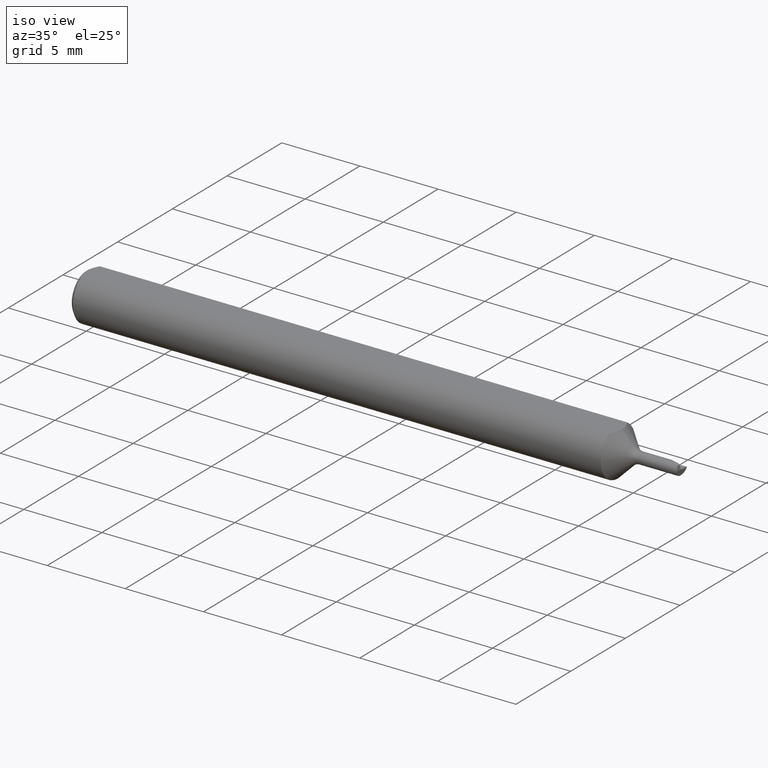
[diagram: clean part render]
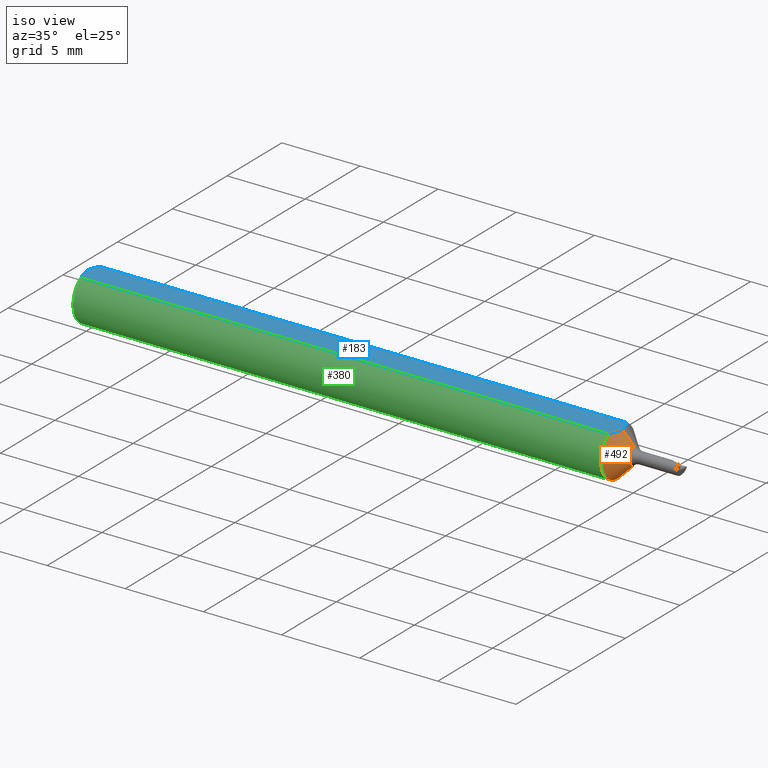
[diagram: same view with three faces highlighted in distinct colors, each labeled with its STEP entity id]
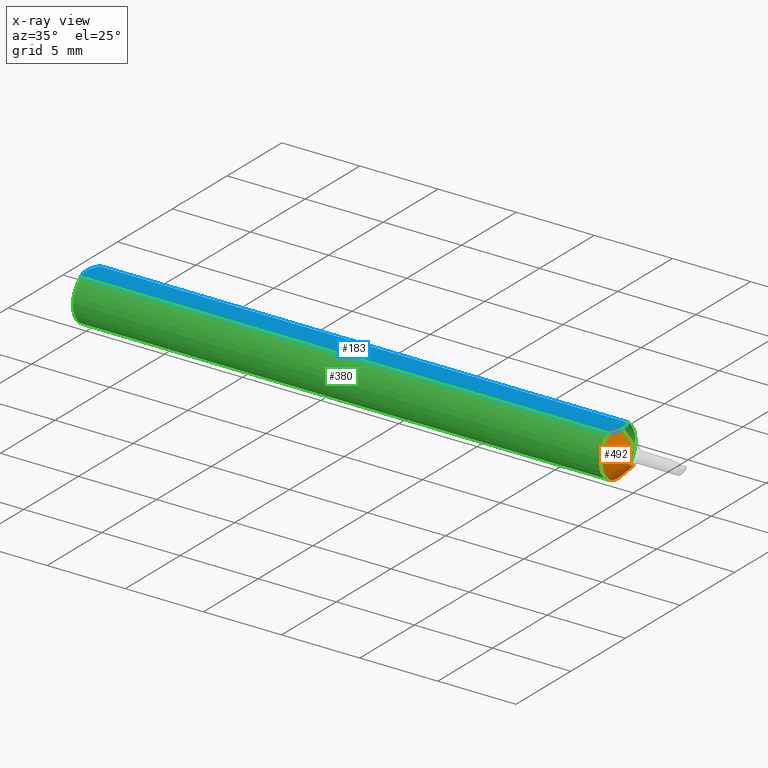
[diagram: x-ray of the same camera — body ghosted, the three highlighted faces saturated]
A machine part, iso view with three faces highlighted in distinct colors.
The next image is the same camera in x-ray (body ghosted, the three faces saturated) — at least one of them is partly hidden behind the body in this view.
Their STEP definitions:

[orange] entity #492 — the highlighted conical surface has half-angle 45 deg.
#19 = CARTESIAN_POINT ( 'NONE',  ( 1.339650000000000007, 0.000000000000000000, 0.000000000000000000 ) ) ;
#30 = VERTEX_POINT ( 'NONE', #156 ) ;
#53 = CARTESIAN_POINT ( 'NONE',  ( 1.380677669529663865, 2.611232376085963916E-18, -0.02132233047033647161 ) ) ;
#60 = ORIENTED_EDGE ( 'NONE', *, *, #375, .T. ) ;
#87 = EDGE_LOOP ( 'NONE', ( #453, #309, #60, #531, #537 ) ) ;
#98 = CARTESIAN_POINT ( 'NONE',  ( 1.339650000000000007, -0.03386738844375220686, 0.05235000000000000070 ) ) ;
#106 = CARTESIAN_POINT ( 'NONE',  ( 1.348578451796299094, -0.01191733704899615789, 0.05235000000000002152 ) ) ;
#112 = B_SPLINE_CURVE_WITH_KNOTS ( 'NONE', 3,
 ( #540, #394, #106, #256, #595, #98 ),
 .UNSPECIFIED., .F., .F.,
 ( 4, 2, 4 ),
 ( 0.002995647966321671272, 0.003444829281114806727, 0.003894010595907941748 ),
 .UNSPECIFIED. ) ;
#130 = VERTEX_POINT ( 'NONE', #364 ) ;
#156 = CARTESIAN_POINT ( 'NONE',  ( 1.380677669529663865, 2.611232376085951590E-18, -0.02132233047033637099 ) ) ;
#161 = CONICAL_SURFACE ( 'NONE', #277, 0.02132233047033647161, 0.7853981633974437271 ) ;
#187 = LINE ( 'NONE', #582, #282 ) ;
#193 = CIRCLE ( 'NONE', #556, 0.02132233047033647161 ) ;
#194 = CARTESIAN_POINT ( 'NONE',  ( 1.380677669529663865, 0.000000000000000000, 0.000000000000000000 ) ) ;
#199 = EDGE_CURVE ( 'NONE', #254, #480, #555, .T. ) ;
#214 = CARTESIAN_POINT ( 'NONE',  ( 1.380677669529663865, 0.000000000000000000, 0.000000000000000000 ) ) ;
#244 = FACE_OUTER_BOUND ( 'NONE', #87, .T. ) ;
#251 = CARTESIAN_POINT ( 'NONE',  ( 1.339650000000000007, -0.03386738844375220686, 0.05235000000000000070 ) ) ;
#254 = VERTEX_POINT ( 'NONE', #460 ) ;
#256 = CARTESIAN_POINT ( 'NONE',  ( 1.344984136213919879, -0.02321572383389658781, 0.05235000000000001458 ) ) ;
#277 = AXIS2_PLACEMENT_3D ( 'NONE', #194, #294, #538 ) ;
#280 = DIRECTION ( 'NONE',  ( -0.7071067811865507924, 0.000000000000000000, 0.7071067811865442421 ) ) ;
#282 = VECTOR ( 'NONE', #280, 39.37007874015748143 ) ;
#294 = DIRECTION ( 'NONE',  ( -1.000000000000000000, -0.000000000000000000, -0.000000000000000000 ) ) ;
#307 = DIRECTION ( 'NONE',  ( -1.000000000000000000, -0.000000000000000000, -0.000000000000000000 ) ) ;
#309 = ORIENTED_EDGE ( 'NONE', *, *, #593, .T. ) ;
#364 = CARTESIAN_POINT ( 'NONE',  ( 1.349650000000000238, -3.532469938474420466E-21, 0.05235000000000001458 ) ) ;
#375 = EDGE_CURVE ( 'NONE', #469, #130, #187, .T. ) ;
#394 = CARTESIAN_POINT ( 'NONE',  ( 1.349650000000000238, -0.005923604052113098407, 0.05235000000000002152 ) ) ;
#414 = AXIS2_PLACEMENT_3D ( 'NONE', #19, #613, #416 ) ;
#416 = DIRECTION ( 'NONE',  ( 0.000000000000000000, 0.000000000000000000, 1.000000000000000000 ) ) ;
#439 = DIRECTION ( 'NONE',  ( -0.7071067811865507924, 8.659560562354893415E-17, -0.7071067811865442421 ) ) ;
#453 = ORIENTED_EDGE ( 'NONE', *, *, #564, .F. ) ;
#460 = CARTESIAN_POINT ( 'NONE',  ( 1.339650000000000007, 7.635672792683746671E-18, -0.06235000000000000264 ) ) ;
#469 = VERTEX_POINT ( 'NONE', #494 ) ;
#480 = VERTEX_POINT ( 'NONE', #251 ) ;
#483 = EDGE_CURVE ( 'NONE', #130, #480, #112, .T. ) ;
#489 = VECTOR ( 'NONE', #439, 39.37007874015748143 ) ;
#491 = LINE ( 'NONE', #53, #489 ) ;
#492 = ADVANCED_FACE ( 'NONE', ( #244 ), #161, .T. ) ;
#494 = CARTESIAN_POINT ( 'NONE',  ( 1.380677669529663865, 0.000000000000000000, 0.02132233047033637099 ) ) ;
#502 = DIRECTION ( 'NONE',  ( 0.000000000000000000, 0.000000000000000000, 1.000000000000000000 ) ) ;
#531 = ORIENTED_EDGE ( 'NONE', *, *, #483, .T. ) ;
#537 = ORIENTED_EDGE ( 'NONE', *, *, #199, .F. ) ;
#538 = DIRECTION ( 'NONE',  ( 0.000000000000000000, 0.000000000000000000, 1.000000000000000000 ) ) ;
#540 = CARTESIAN_POINT ( 'NONE',  ( 1.349650000000000238, -3.532469938474420466E-21, 0.05235000000000001458 ) ) ;
#555 = CIRCLE ( 'NONE', #414, 0.06235000000000000264 ) ;
#556 = AXIS2_PLACEMENT_3D ( 'NONE', #214, #307, #502 ) ;
#564 = EDGE_CURVE ( 'NONE', #30, #254, #491, .T. ) ;
#582 = CARTESIAN_POINT ( 'NONE',  ( 1.380677669529663865, 0.000000000000000000, 0.02132233047033647161 ) ) ;
#593 = EDGE_CURVE ( 'NONE', #30, #469, #193, .T. ) ;
#595 = CARTESIAN_POINT ( 'NONE',  ( 1.342499562682859970, -0.02862133194396089889, 0.05235000000000002152 ) ) ;
#613 = DIRECTION ( 'NONE',  ( -1.000000000000000000, -0.000000000000000000, -0.000000000000000000 ) ) ;

[blue] entity #183 — the highlighted planar face has unit normal (0, 0, -1).
#11 = B_SPLINE_CURVE_WITH_KNOTS ( 'NONE', 3,
 ( #488, #257, #293, #485, #393, #101 ),
 .UNSPECIFIED., .F., .F.,
 ( 4, 2, 4 ),
 ( 0.0009229516234078821539, 0.001371626545108044996, 0.001820301466808207621 ),
 .UNSPECIFIED. ) ;
#25 = B_SPLINE_CURVE_WITH_KNOTS ( 'NONE', 3,
 ( #221, #621, #322, #275, #468, #429 ),
 .UNSPECIFIED., .F., .F.,
 ( 4, 2, 4 ),
 ( 0.001820301466808207621, 0.002269751589840481119, 0.002719201712872754834 ),
 .UNSPECIFIED. ) ;
#44 = ORIENTED_EDGE ( 'NONE', *, *, #97, .T. ) ;
#51 = DIRECTION ( 'NONE',  ( 1.000000000000000000, 0.000000000000000000, 0.000000000000000000 ) ) ;
#61 = CARTESIAN_POINT ( 'NONE',  ( 0.000000000000000000, -0.03386738844375220686, 0.05235000000000000070 ) ) ;
#69 = CARTESIAN_POINT ( 'NONE',  ( 1.339650000000000007, 0.03386738844375220686, 0.05235000000000000070 ) ) ;
#71 = DIRECTION ( 'NONE',  ( -1.000000000000000000, 0.000000000000000000, -0.000000000000000000 ) ) ;
#74 = PLANE ( 'NONE',  #241 ) ;
#94 = ORIENTED_EDGE ( 'NONE', *, *, #483, .F. ) ;
#97 = EDGE_CURVE ( 'NONE', #302, #600, #11, .T. ) ;
#98 = CARTESIAN_POINT ( 'NONE',  ( 1.339650000000000007, -0.03386738844375220686, 0.05235000000000000070 ) ) ;
#100 = CARTESIAN_POINT ( 'NONE',  ( 1.349650000000000238, 0.005921060704595571683, 0.05235000000000002152 ) ) ;
#101 = CARTESIAN_POINT ( 'NONE',  ( 0.000000000000000000, 0.000000000000000000, 0.05235000000000033377 ) ) ;
#106 = CARTESIAN_POINT ( 'NONE',  ( 1.348578451796299094, -0.01191733704899615789, 0.05235000000000002152 ) ) ;
#112 = B_SPLINE_CURVE_WITH_KNOTS ( 'NONE', 3,
 ( #540, #394, #106, #256, #595, #98 ),
 .UNSPECIFIED., .F., .F.,
 ( 4, 2, 4 ),
 ( 0.002995647966321671272, 0.003444829281114806727, 0.003894010595907941748 ),
 .UNSPECIFIED. ) ;
#113 = ORIENTED_EDGE ( 'NONE', *, *, #513, .F. ) ;
#130 = VERTEX_POINT ( 'NONE', #364 ) ;
#149 = CARTESIAN_POINT ( 'NONE',  ( 1.344987470951200415, 0.02320690041070301232, 0.05235000000000002152 ) ) ;
#183 = ADVANCED_FACE ( 'NONE', ( #515 ), #74, .F. ) ;
#188 = ORIENTED_EDGE ( 'NONE', *, *, #554, .F. ) ;
#190 = LINE ( 'NONE', #61, #637 ) ;
#205 = CARTESIAN_POINT ( 'NONE',  ( 1.349650000000000238, -3.532469938474420466E-21, 0.05235000000000001458 ) ) ;
#221 = CARTESIAN_POINT ( 'NONE',  ( 0.000000000000000000, 0.000000000000000000, 0.05235000000000033377 ) ) ;
#241 = AXIS2_PLACEMENT_3D ( 'NONE', #273, #457, #71 ) ;
#246 = CARTESIAN_POINT ( 'NONE',  ( 0.000000000000000000, 0.03386738844375220686, 0.05235000000000000070 ) ) ;
#251 = CARTESIAN_POINT ( 'NONE',  ( 1.339650000000000007, -0.03386738844375220686, 0.05235000000000000070 ) ) ;
#256 = CARTESIAN_POINT ( 'NONE',  ( 1.344984136213919879, -0.02321572383389658781, 0.05235000000000001458 ) ) ;
#257 = CARTESIAN_POINT ( 'NONE',  ( 0.007185421074056205608, 0.02868573718286560742, 0.05235000000000002152 ) ) ;
#273 = CARTESIAN_POINT ( 'NONE',  ( 1.500000000000000222, 0.06235000000000000264, 0.05235000000000001458 ) ) ;
#275 = CARTESIAN_POINT ( 'NONE',  ( 0.004679365186825695105, -0.02325953974091124477, 0.05235000000000000764 ) ) ;
#289 = EDGE_LOOP ( 'NONE', ( #597, #44, #419, #113, #94, #188 ) ) ;
#293 = CARTESIAN_POINT ( 'NONE',  ( 0.004671770759546769666, 0.02323517832780105236, 0.05235000000000002152 ) ) ;
#302 = VERTEX_POINT ( 'NONE', #373 ) ;
#322 = CARTESIAN_POINT ( 'NONE',  ( 0.001055043921644571291, -0.01186408073217194367, 0.05235000000000002152 ) ) ;
#343 = CARTESIAN_POINT ( 'NONE',  ( 1.339650000000000007, 0.03386738844375220686, 0.05235000000000000070 ) ) ;
#364 = CARTESIAN_POINT ( 'NONE',  ( 1.349650000000000238, -3.532469938474420466E-21, 0.05235000000000001458 ) ) ;
#367 = EDGE_CURVE ( 'NONE', #600, #551, #25, .T. ) ;
#373 = CARTESIAN_POINT ( 'NONE',  ( 0.009999999999999890921, 0.03386738844375217911, 0.05235000000000001458 ) ) ;
#392 = CARTESIAN_POINT ( 'NONE',  ( 1.342494366674541473, 0.02863089781642876377, 0.05235000000000002152 ) ) ;
#393 = CARTESIAN_POINT ( 'NONE',  ( -1.099542139246802830E-15, 0.005954997531773979953, 0.05235000000000002152 ) ) ;
#394 = CARTESIAN_POINT ( 'NONE',  ( 1.349650000000000238, -0.005923604052113098407, 0.05235000000000002152 ) ) ;
#419 = ORIENTED_EDGE ( 'NONE', *, *, #367, .T. ) ;
#429 = CARTESIAN_POINT ( 'NONE',  ( 0.01000000000000840841, -0.03386738844395137393, 0.05235000000000001458 ) ) ;
#432 = CARTESIAN_POINT ( 'NONE',  ( 0.01000000000000840841, -0.03386738844395137393, 0.05235000000000001458 ) ) ;
#435 = VECTOR ( 'NONE', #51, 39.37007874015748143 ) ;
#448 = CARTESIAN_POINT ( 'NONE',  ( 0.000000000000000000, 0.000000000000000000, 0.05235000000000033377 ) ) ;
#454 = EDGE_CURVE ( 'NONE', #302, #629, #487, .T. ) ;
#457 = DIRECTION ( 'NONE',  ( 0.000000000000000000, 0.000000000000000000, -1.000000000000000000 ) ) ;
#468 = CARTESIAN_POINT ( 'NONE',  ( 0.007163450771416182694, -0.02864528976632487248, 0.05235000000000001458 ) ) ;
#480 = VERTEX_POINT ( 'NONE', #251 ) ;
#483 = EDGE_CURVE ( 'NONE', #130, #480, #112, .T. ) ;
#485 = CARTESIAN_POINT ( 'NONE',  ( 0.001063697276021357847, 0.01189177144351693735, 0.05235000000000001458 ) ) ;
#487 = LINE ( 'NONE', #246, #435 ) ;
#488 = CARTESIAN_POINT ( 'NONE',  ( 0.009999999999999890921, 0.03386738844375217911, 0.05235000000000001458 ) ) ;
#513 = EDGE_CURVE ( 'NONE', #480, #551, #190, .T. ) ;
#515 = FACE_OUTER_BOUND ( 'NONE', #289, .T. ) ;
#517 = B_SPLINE_CURVE_WITH_KNOTS ( 'NONE', 3,
 ( #343, #392, #149, #545, #100, #205 ),
 .UNSPECIFIED., .F., .F.,
 ( 4, 2, 4 ),
 ( 0.002097671056027859606, 0.002546659511174765439, 0.002995647966321671272 ),
 .UNSPECIFIED. ) ;
#540 = CARTESIAN_POINT ( 'NONE',  ( 1.349650000000000238, -3.532469938474420466E-21, 0.05235000000000001458 ) ) ;
#545 = CARTESIAN_POINT ( 'NONE',  ( 1.348578772065486708, 0.01191466962039928676, 0.05235000000000001458 ) ) ;
#551 = VERTEX_POINT ( 'NONE', #432 ) ;
#554 = EDGE_CURVE ( 'NONE', #629, #130, #517, .T. ) ;
#595 = CARTESIAN_POINT ( 'NONE',  ( 1.342499562682859970, -0.02862133194396089889, 0.05235000000000002152 ) ) ;
#597 = ORIENTED_EDGE ( 'NONE', *, *, #454, .F. ) ;
#600 = VERTEX_POINT ( 'NONE', #448 ) ;
#621 = CARTESIAN_POINT ( 'NONE',  ( -1.070637973615595603E-15, -0.005965286321711177862, 0.05235000000000002152 ) ) ;
#629 = VERTEX_POINT ( 'NONE', #69 ) ;
#635 = DIRECTION ( 'NONE',  ( -1.000000000000000000, -0.000000000000000000, -0.000000000000000000 ) ) ;
#637 = VECTOR ( 'NONE', #635, 39.37007874015748143 ) ;

[green] entity #380 — the highlighted cylindrical surface (edge-blend (fillet) strip) has radius 1.5837 mm, axis along (-1, -0, -0).
#12 = EDGE_CURVE ( 'NONE', #629, #254, #440, .T. ) ;
#19 = CARTESIAN_POINT ( 'NONE',  ( 1.339650000000000007, 0.000000000000000000, 0.000000000000000000 ) ) ;
#34 = DIRECTION ( 'NONE',  ( -1.000000000000000000, -0.000000000000000000, -0.000000000000000000 ) ) ;
#48 = VERTEX_POINT ( 'NONE', #603 ) ;
#51 = DIRECTION ( 'NONE',  ( 1.000000000000000000, 0.000000000000000000, 0.000000000000000000 ) ) ;
#61 = CARTESIAN_POINT ( 'NONE',  ( 0.000000000000000000, -0.03386738844375220686, 0.05235000000000000070 ) ) ;
#69 = CARTESIAN_POINT ( 'NONE',  ( 1.339650000000000007, 0.03386738844375220686, 0.05235000000000000070 ) ) ;
#88 = AXIS2_PLACEMENT_3D ( 'NONE', #596, #295, #252 ) ;
#90 = EDGE_CURVE ( 'NONE', #48, #302, #644, .T. ) ;
#96 = CARTESIAN_POINT ( 'NONE',  ( 0.009999999999999887451, 0.000000000000000000, 0.000000000000000000 ) ) ;
#124 = ORIENTED_EDGE ( 'NONE', *, *, #199, .T. ) ;
#126 = FACE_OUTER_BOUND ( 'NONE', #137, .T. ) ;
#137 = EDGE_LOOP ( 'NONE', ( #177, #124, #281, #631, #431, #326 ) ) ;
#145 = CARTESIAN_POINT ( 'NONE',  ( 0.009999999999999887451, 0.000000000000000000, 0.000000000000000000 ) ) ;
#146 = AXIS2_PLACEMENT_3D ( 'NONE', #471, #34, #225 ) ;
#176 = CYLINDRICAL_SURFACE ( 'NONE', #146, 0.06235000000000000264 ) ;
#177 = ORIENTED_EDGE ( 'NONE', *, *, #12, .T. ) ;
#190 = LINE ( 'NONE', #61, #637 ) ;
#198 = DIRECTION ( 'NONE',  ( 0.000000000000000000, 0.000000000000000000, -1.000000000000000000 ) ) ;
#199 = EDGE_CURVE ( 'NONE', #254, #480, #555, .T. ) ;
#225 = DIRECTION ( 'NONE',  ( 0.000000000000000000, 0.000000000000000000, 1.000000000000000000 ) ) ;
#246 = CARTESIAN_POINT ( 'NONE',  ( 0.000000000000000000, 0.03386738844375220686, 0.05235000000000000070 ) ) ;
#251 = CARTESIAN_POINT ( 'NONE',  ( 1.339650000000000007, -0.03386738844375220686, 0.05235000000000000070 ) ) ;
#252 = DIRECTION ( 'NONE',  ( 0.000000000000000000, 0.000000000000000000, 1.000000000000000000 ) ) ;
#254 = VERTEX_POINT ( 'NONE', #460 ) ;
#281 = ORIENTED_EDGE ( 'NONE', *, *, #513, .T. ) ;
#295 = DIRECTION ( 'NONE',  ( -1.000000000000000000, -0.000000000000000000, -0.000000000000000000 ) ) ;
#302 = VERTEX_POINT ( 'NONE', #373 ) ;
#326 = ORIENTED_EDGE ( 'NONE', *, *, #454, .T. ) ;
#336 = DIRECTION ( 'NONE',  ( 1.000000000000000000, 0.000000000000000000, 0.000000000000000000 ) ) ;
#360 = AXIS2_PLACEMENT_3D ( 'NONE', #96, #446, #198 ) ;
#373 = CARTESIAN_POINT ( 'NONE',  ( 0.009999999999999890921, 0.03386738844375217911, 0.05235000000000001458 ) ) ;
#380 = ADVANCED_FACE ( 'NONE', ( #126 ), #176, .T. ) ;
#387 = CIRCLE ( 'NONE', #520, 0.06235000000000000264 ) ;
#414 = AXIS2_PLACEMENT_3D ( 'NONE', #19, #613, #416 ) ;
#416 = DIRECTION ( 'NONE',  ( 0.000000000000000000, 0.000000000000000000, 1.000000000000000000 ) ) ;
#431 = ORIENTED_EDGE ( 'NONE', *, *, #90, .T. ) ;
#432 = CARTESIAN_POINT ( 'NONE',  ( 0.01000000000000840841, -0.03386738844395137393, 0.05235000000000001458 ) ) ;
#435 = VECTOR ( 'NONE', #51, 39.37007874015748143 ) ;
#440 = CIRCLE ( 'NONE', #88, 0.06235000000000000264 ) ;
#446 = DIRECTION ( 'NONE',  ( 1.000000000000000000, 0.000000000000000000, 0.000000000000000000 ) ) ;
#454 = EDGE_CURVE ( 'NONE', #302, #629, #487, .T. ) ;
#460 = CARTESIAN_POINT ( 'NONE',  ( 1.339650000000000007, 7.635672792683746671E-18, -0.06235000000000000264 ) ) ;
#471 = CARTESIAN_POINT ( 'NONE',  ( 0.000000000000000000, 0.000000000000000000, 0.000000000000000000 ) ) ;
#476 = EDGE_CURVE ( 'NONE', #551, #48, #387, .T. ) ;
#480 = VERTEX_POINT ( 'NONE', #251 ) ;
#487 = LINE ( 'NONE', #246, #435 ) ;
#513 = EDGE_CURVE ( 'NONE', #480, #551, #190, .T. ) ;
#520 = AXIS2_PLACEMENT_3D ( 'NONE', #145, #336, #591 ) ;
#551 = VERTEX_POINT ( 'NONE', #432 ) ;
#555 = CIRCLE ( 'NONE', #414, 0.06235000000000000264 ) ;
#591 = DIRECTION ( 'NONE',  ( 0.000000000000000000, 0.000000000000000000, -1.000000000000000000 ) ) ;
#596 = CARTESIAN_POINT ( 'NONE',  ( 1.339650000000000007, 0.000000000000000000, 0.000000000000000000 ) ) ;
#603 = CARTESIAN_POINT ( 'NONE',  ( 0.009999999999999887451, 0.000000000000000000, -0.06235000000000000264 ) ) ;
#613 = DIRECTION ( 'NONE',  ( -1.000000000000000000, -0.000000000000000000, -0.000000000000000000 ) ) ;
#629 = VERTEX_POINT ( 'NONE', #69 ) ;
#631 = ORIENTED_EDGE ( 'NONE', *, *, #476, .T. ) ;
#635 = DIRECTION ( 'NONE',  ( -1.000000000000000000, -0.000000000000000000, -0.000000000000000000 ) ) ;
#637 = VECTOR ( 'NONE', #635, 39.37007874015748143 ) ;
#644 = CIRCLE ( 'NONE', #360, 0.06235000000000000264 ) ;